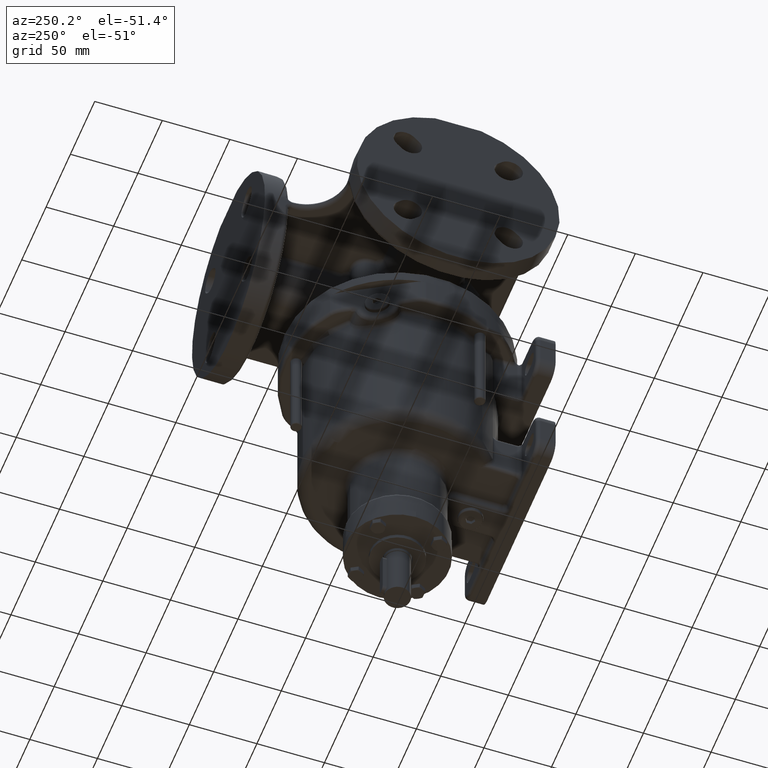
[diagram: clean part render]
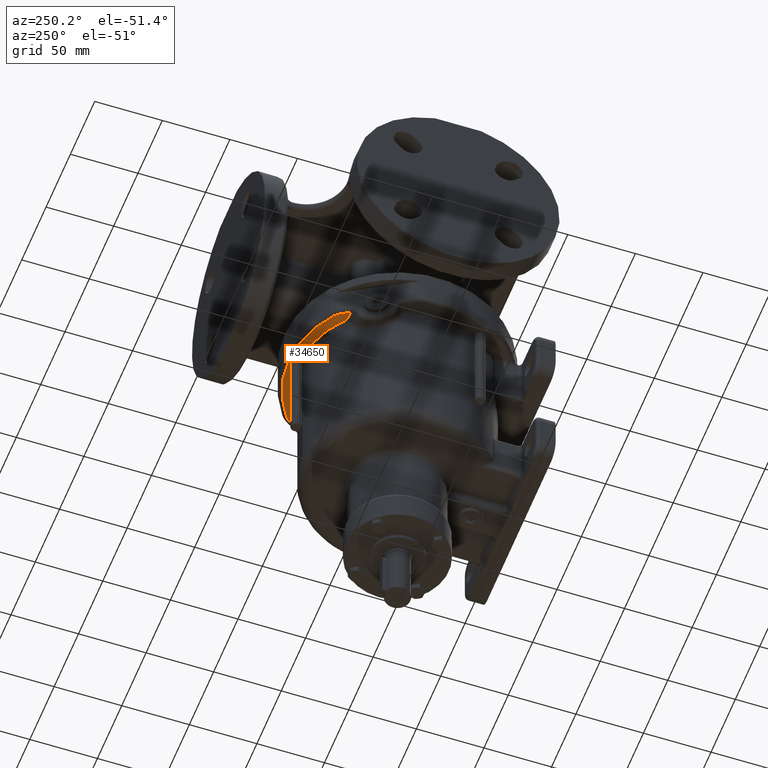
[diagram: same view with one face highlighted and labeled with its STEP entity id]
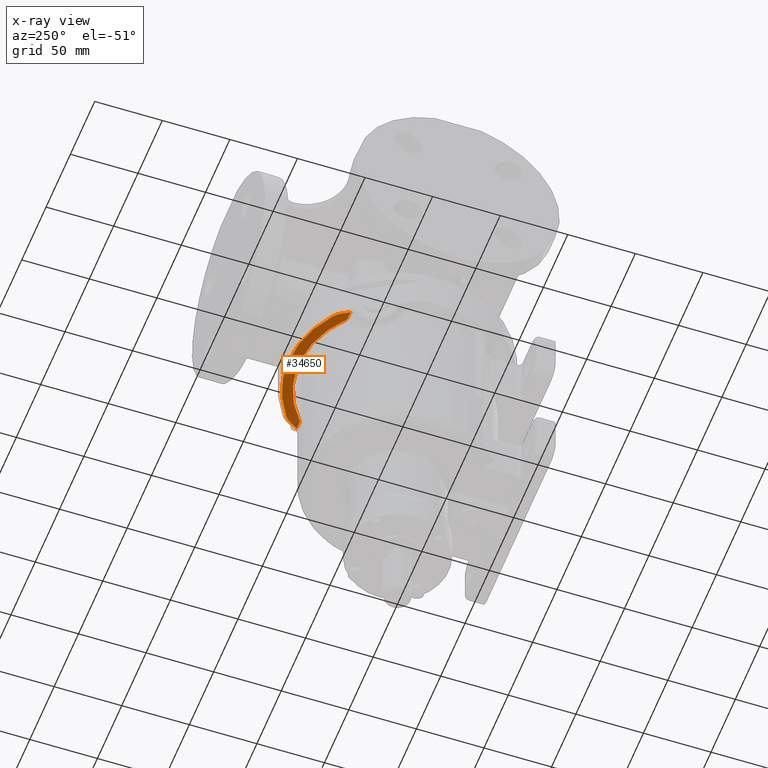
[diagram: x-ray of the same camera — body ghosted, the highlighted face saturated]
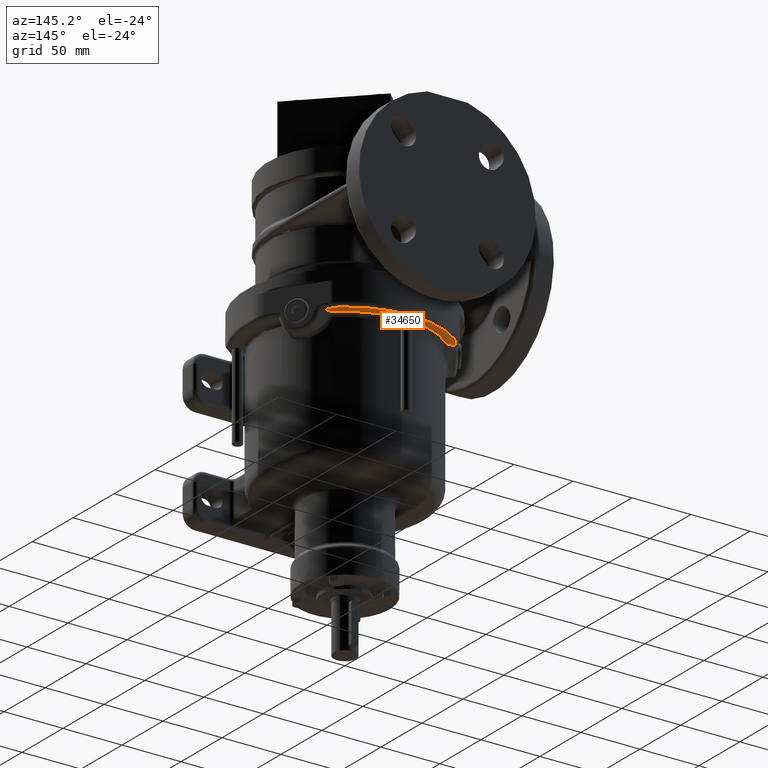
[diagram: same view with one face highlighted and labeled with its STEP entity id]
A machine part, auxiliary view. The second image highlights one B-rep face of the part: STEP entity #34650.
The next image is the same camera in x-ray: the body ghosted, the highlighted face saturated — about 13% of this face is hidden behind the body in this view.
A second angle (auxiliary view) of the same face is appended — the face is thin or edge-on in the first view.
In plain terms, the highlighted planar face has unit normal (0, 0, 1).
Its self-contained STEP definition (entity closure, byte-faithful):
#10638=CARTESIAN_POINT('',(0.E0,0.E0,8.E0));
#10639=DIRECTION('',(0.E0,0.E0,1.E0));
#10640=DIRECTION('',(-4.680363069384E-2,9.989041095890E-1,0.E0));
#10641=AXIS2_PLACEMENT_3D('',#10638,#10639,#10640);
#10648=CARTESIAN_POINT('',(0.E0,0.E0,8.E0));
#10649=DIRECTION('',(0.E0,0.E0,1.E0));
#10650=DIRECTION('',(6.638890637470E-1,7.478310711900E-1,0.E0));
#10651=AXIS2_PLACEMENT_3D('',#10648,#10649,#10650);
#10662=CARTESIAN_POINT('',(0.E0,7.5E1,8.E0));
#10663=DIRECTION('',(0.E0,0.E0,1.E0));
#10664=DIRECTION('',(8.541662601625E-1,-5.2E-1,0.E0));
#10665=AXIS2_PLACEMENT_3D('',#10662,#10663,#10664);
#10667=DIRECTION('',(1.E0,0.E0,0.E0));
#10668=VECTOR('',#10667,6.620124395941E0);
#10669=CARTESIAN_POINT('',(4.846390165353E1,5.459166819687E1,8.E0));
#10670=LINE('',#10669,#10668);
#10671=DIRECTION('',(-5.E-1,8.660254037844E-1,0.E0));
#10672=VECTOR('',#10671,6.114773440697E0);
#10673=CARTESIAN_POINT('',(5.508402604947E1,5.459166819687E1,8.E0));
#10674=LINE('',#10673,#10672);
#10675=CARTESIAN_POINT('',(3.730420746479E1,5.138721733490E1,8.E0));
#10676=DIRECTION('',(0.E0,0.E0,1.E0));
#10677=DIRECTION('',(8.660254037844E-1,5.E-1,0.E0));
#10678=AXIS2_PLACEMENT_3D('',#10675,#10676,#10677);
#10680=CARTESIAN_POINT('',(0.E0,0.E0,8.E0));
#10681=DIRECTION('',(0.E0,0.E0,1.E0));
#10682=DIRECTION('',(5.874678340911E-1,8.092475170850E-1,0.E0));
#10683=AXIS2_PLACEMENT_3D('',#10680,#10681,#10682);
#10685=CARTESIAN_POINT('',(-3.730420746479E1,5.138721733490E1,8.E0));
#10686=DIRECTION('',(0.E0,0.E0,1.E0));
#10687=DIRECTION('',(-5.874678340911E-1,8.092475170850E-1,0.E0));
#10688=AXIS2_PLACEMENT_3D('',#10685,#10686,#10687);
#10690=DIRECTION('',(-5.E-1,-8.660254037844E-1,0.E0));
#10691=VECTOR('',#10690,6.114773440697E0);
#10692=CARTESIAN_POINT('',(-5.202663932912E1,5.988721733490E1,8.E0));
#10693=LINE('',#10692,#10691);
#10694=DIRECTION('',(1.E0,0.E0,0.E0));
#10695=VECTOR('',#10694,6.620124395941E0);
#10696=CARTESIAN_POINT('',(-5.508402604947E1,5.459166819687E1,8.E0));
#10697=LINE('',#10696,#10695);
#10698=CARTESIAN_POINT('',(0.E0,7.5E1,8.E0));
#10699=DIRECTION('',(0.E0,0.E0,1.E0));
#10700=DIRECTION('',(-5.E-1,8.660254037844E-1,0.E0));
#10701=AXIS2_PLACEMENT_3D('',#10698,#10699,#10700);
#11356=CARTESIAN_POINT('',(-5.508402604947E1,5.459166819687E1,8.E0));
#16139=VERTEX_POINT('',#11356);
#16142=CARTESIAN_POINT('',(-5.202663932912E1,5.988721733490E1,8.E0));
#16143=VERTEX_POINT('',#16142);
#16146=CARTESIAN_POINT('',(-4.729116064434E1,6.514442512534E1,8.E0));
#16147=VERTEX_POINT('',#16146);
#16150=CARTESIAN_POINT('',(4.729116064434E1,6.514442512534E1,8.E0));
#16151=VERTEX_POINT('',#16150);
#16154=CARTESIAN_POINT('',(5.202663932912E1,5.988721733490E1,8.E0));
#16155=VERTEX_POINT('',#16154);
#16158=CARTESIAN_POINT('',(5.508402604947E1,5.459166819687E1,8.E0));
#16159=VERTEX_POINT('',#16158);
#16427=CARTESIAN_POINT('',(-4.846390165353E1,5.459166819687E1,8.E0));
#16428=VERTEX_POINT('',#16427);
#16434=CARTESIAN_POINT('',(4.846390165353E1,5.459166819687E1,8.E0));
#16436=VERTEX_POINT('',#16434);
#16964=CARTESIAN_POINT('',(3.416665040650E0,7.292E1,8.E0));
#16965=CARTESIAN_POINT('',(-2.E0,7.846410161514E1,8.E0));
#16966=VERTEX_POINT('',#16964);
#16967=VERTEX_POINT('',#16965);
#16968=CARTESIAN_POINT('',(-3.416665040650E0,7.292E1,8.E0));
#16969=VERTEX_POINT('',#16968);
#34627=CARTESIAN_POINT('',(0.E0,0.E0,8.E0));
#34628=DIRECTION('',(0.E0,0.E0,1.E0));
#34629=DIRECTION('',(0.E0,1.E0,0.E0));
#34630=AXIS2_PLACEMENT_3D('',#34627,#34628,#34629);
#34631=PLANE('',#34630);
#34632=ORIENTED_EDGE('',*,*,#34615,.F.);
#34633=ORIENTED_EDGE('',*,*,#34605,.F.);
#34635=ORIENTED_EDGE('',*,*,#34634,.T.);
#34637=ORIENTED_EDGE('',*,*,#34636,.T.);
#34638=ORIENTED_EDGE('',*,*,#32916,.T.);
#34639=ORIENTED_EDGE('',*,*,#32931,.T.);
#34640=ORIENTED_EDGE('',*,*,#32946,.T.);
#34642=ORIENTED_EDGE('',*,*,#34641,.T.);
#34644=ORIENTED_EDGE('',*,*,#34643,.T.);
#34645=ORIENTED_EDGE('',*,*,#34597,.F.);
#34647=ORIENTED_EDGE('',*,*,#34646,.F.);
#34648=EDGE_LOOP('',(#34632,#34633,#34635,#34637,#34638,#34639,#34640,#34642,
#34644,#34645,#34647));
#34649=FACE_OUTER_BOUND('',#34648,.F.);
#34650=ADVANCED_FACE('',(#34649),#34631,.F.);
#10642=CIRCLE('',#10641,7.3E1);
#10652=CIRCLE('',#10651,7.3E1);
#10666=CIRCLE('',#10665,4.E0);
#10679=CIRCLE('',#10678,1.7E1);
#10684=CIRCLE('',#10683,8.05E1);
#10689=CIRCLE('',#10688,1.7E1);
#10702=CIRCLE('',#10701,4.E0);
#32916=EDGE_CURVE('',#16155,#16151,#10679,.T.);
#32931=EDGE_CURVE('',#16151,#16147,#10684,.T.);
#32946=EDGE_CURVE('',#16147,#16143,#10689,.T.);
#34597=EDGE_CURVE('',#16969,#16428,#10642,.T.);
#34605=EDGE_CURVE('',#16436,#16966,#10652,.T.);
#34615=EDGE_CURVE('',#16966,#16967,#10666,.T.);
#34634=EDGE_CURVE('',#16436,#16159,#10670,.T.);
#34636=EDGE_CURVE('',#16159,#16155,#10674,.T.);
#34641=EDGE_CURVE('',#16143,#16139,#10693,.T.);
#34643=EDGE_CURVE('',#16139,#16428,#10697,.T.);
#34646=EDGE_CURVE('',#16967,#16969,#10702,.T.);